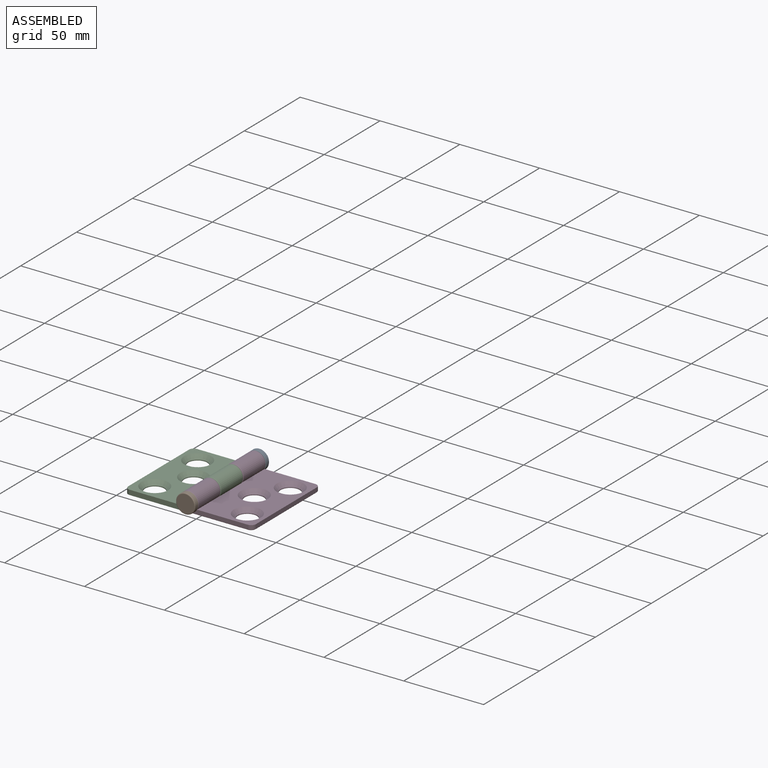
[diagram: assembled view]
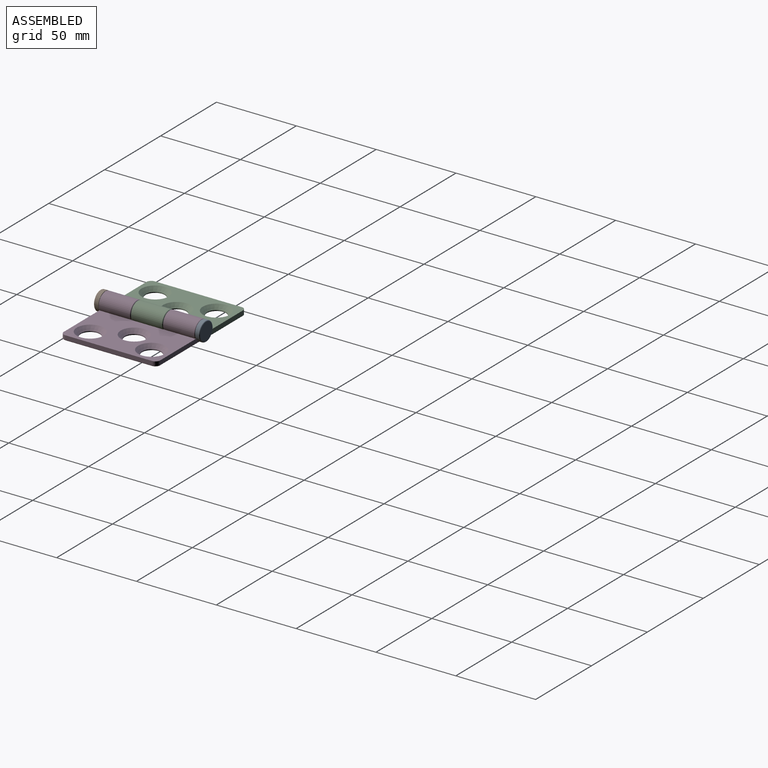
[diagram: assembled view, second angle]
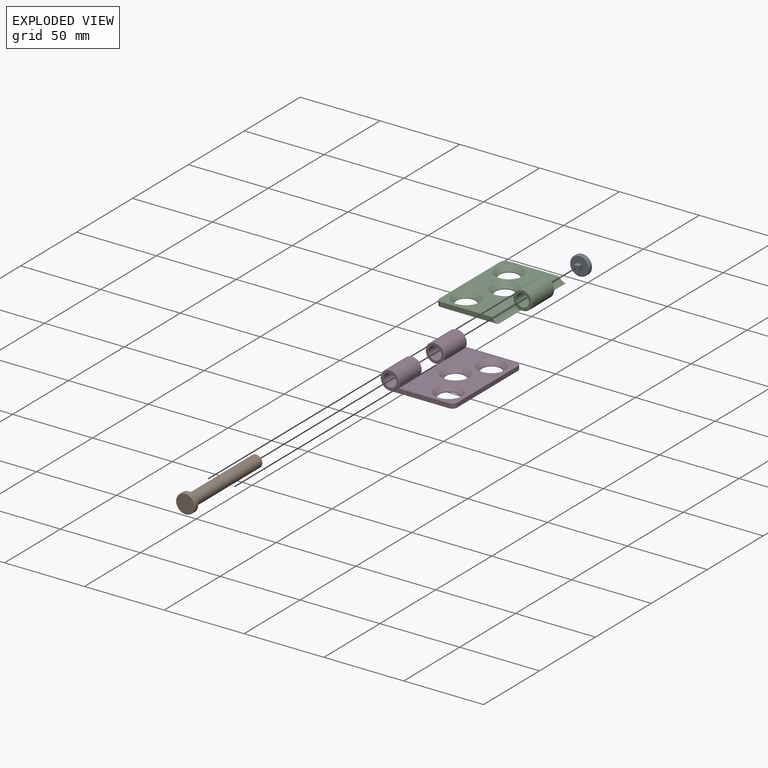
[diagram: exploded view]
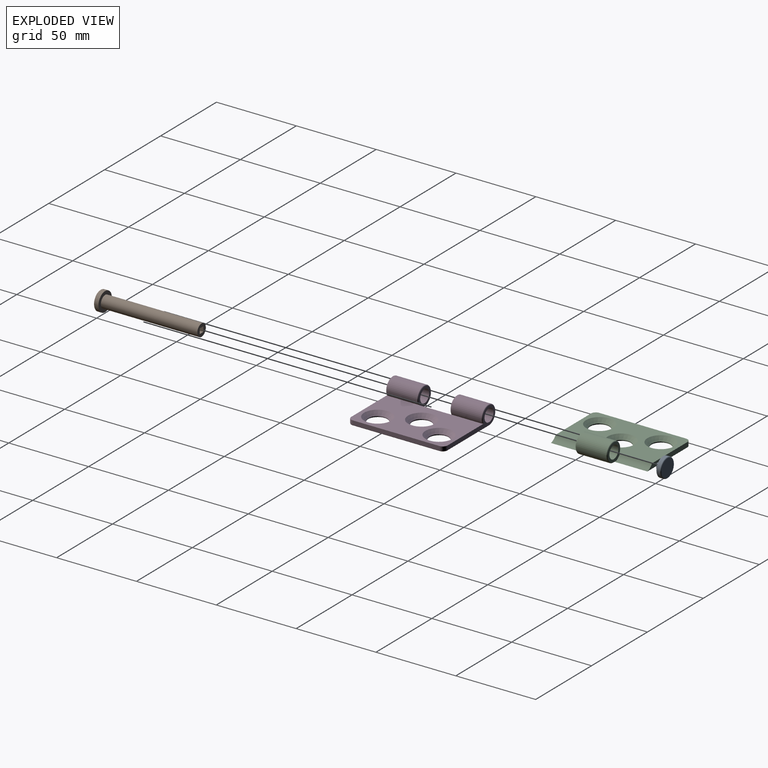
[diagram: exploded view, second angle]
ASSEMBLY  parts=4 mates=3
PART A: 10 faces, bbox 13x6x13 mm
  f0: cylinder r=6mm len=12mm, axis (0,-1,0), area 75.4mm2, adj f8,f9
  f1: plane 11x11mm, normal (0,1,0), area 95mm2, adj f9
  f2: plane 11x11mm, normal (0,-1,0), area 86.1mm2, adj f3,f4,f5,f6,f8
  f3: plane 3x2.99mm, normal (0,0,-1), area 9mm2, adj f2,f4,f6,f7
  f4: plane 3x3mm, normal (1,0,0), area 9mm2, adj f2,f3,f5,f7
  f5: plane 3x2.99mm, normal (0,0,1), area 9mm2, adj f2,f4,f6,f7
  f6: plane 3x3mm, normal (-1,0,0), area 9mm2, adj f2,f3,f5,f7
  f7: plane 3x2.99mm, normal (0,-1,0), area 9mm2, adj f3,f4,f5,f6
  f8: torus R=5.5mm, axis (0,1,0), area 28.7mm2, adj f0,f2
  f9: torus R=5.5mm, axis (0,1,0), area 28.7mm2, adj f0,f1
PART B: 11 faces, bbox 13x63.4x13 mm
  f0: plane 7.6x7.6mm, normal (0,1,0), area 35.1mm2, adj f4,f5,f6,f7,f8
  f1: cylinder r=6mm len=12mm, axis (0,1,0), area 94.2mm2, adj f3,f10
  f2: plane 11x11mm, normal (0,-1,0), area 95mm2, adj f10
  f3: plane 12x12mm, normal (0,1,0), area 67.7mm2, adj f1,f4
  f4: cylinder r=3.8mm len=60.4mm, axis (0,-1,0), area 1442.1mm2, adj f0,f3
  f5: plane 30x3.2mm, normal (0,0,1), area 96mm2, adj f0,f6,f8,f9
  f6: plane 30x3.2mm, normal (1,0,0), area 96mm2, adj f0,f5,f7,f9
  f7: plane 30x3.2mm, normal (0,0,-1), area 96mm2, adj f0,f6,f8,f9
  f8: plane 30x3.2mm, normal (-1,0,0), area 96mm2, adj f0,f5,f7,f9
  f9: plane 3.2x3.2mm, normal (0,1,0), area 10.2mm2, adj f5,f6,f7,f8
  f10: torus R=5.5mm, axis (0,-1,0), area 28.7mm2, adj f1,f2
PART C: 23 faces, bbox 46.5x60.4x13 mm
  f0: cylinder r=6mm len=19mm, axis (0,-1,0), area 596.9mm2, adj f1,f3,f19,f21
  f1: plane 60.4x35.39mm, normal (0,0,1), area 1412.8mm2, adj f0,f2,f4,f5,f9,f10,f11,f12
  f2: plane 54.4x3mm, normal (-1,0,0), area 163.2mm2, adj f1,f3,f17,f18
  f3: plane 60.4x40mm, normal (0,0,-1), area 2027.3mm2, adj f0,f2,f4,f5,f6,f7,f8,f13
  f4: plane 35.9x3mm, normal (0,1,0), area 99.4mm2, adj f1,f3,f13,f18
  f5: plane 35.9x3mm, normal (0,-1,0), area 99.4mm2, adj f1,f3,f15,f17
  f6: cylinder r=6mm len=12mm, axis (0,0,1), area 18.8mm2, adj f3,f10
  f7: cylinder r=6mm len=12mm, axis (0,0,1), area 18.8mm2, adj f3,f9
  f8: cylinder r=6mm len=12mm, axis (0,0,1), area 18.8mm2, adj f3,f11
  f9: cone r=6mm half-angle=45deg, axis (0,0,1), area 161.1mm2, adj f1,f7
  f10: cone r=6mm half-angle=45deg, axis (0,0,1), area 161.1mm2, adj f1,f6
  f11: cone r=6mm half-angle=45deg, axis (0,0,1), area 161.1mm2, adj f1,f8
  f12: plane 11x11mm, normal (0,1,0), area 47.3mm2, adj f1,f13,f16,f21,f22
  f13: cylinder r=6.1mm len=20.7mm, axis (0,-1,0), area 108.1mm2, adj f1,f3,f4,f12,f22
  f14: plane 11x11mm, normal (0,-1,0), area 47.3mm2, adj f1,f15,f16,f19,f20
  f15: cylinder r=6.1mm len=20.7mm, axis (0,-1,0), area 108.1mm2, adj f1,f3,f5,f14,f20
  f16: cylinder r=4mm len=20mm, axis (0,-1,0), area 502.7mm2, adj f12,f14
  f17: cylinder r=3mm len=3mm, axis (0,0,-1), area 14.1mm2, adj f1,f2,f3,f5
  f18: cylinder r=3mm len=3mm, axis (0,0,1), area 14.1mm2, adj f1,f2,f3,f4
  f19: torus R=5.5mm, axis (0,-1,0), area 24mm2, adj f0,f1,f14,f20
  f20: cylinder r=0.5mm len=2.64mm, axis (-1,0,0), area 1.4mm2, adj f3,f14,f15,f19
  f21: torus R=5.5mm, axis (0,-1,0), area 24mm2, adj f0,f1,f12,f22
  f22: cylinder r=0.5mm len=2.64mm, axis (1,0,0), area 1.4mm2, adj f3,f12,f13,f21
PART D: 31 faces, bbox 46.7x60.9x13 mm
  f0: plane 60.4x35.39mm, normal (0,0,1), area 1415.3mm2, adj f3,f4,f6,f7,f8,f12,f13,f14
  f1: plane 59.4x39.5mm, normal (0,0,-1), area 1981mm2, adj f3,f6,f9,f10,f11,f17,f21,f22
  f2: cylinder r=4mm len=20.1mm, axis (0,-1,0), area 505.2mm2, adj f7,f15
  f3: cylinder r=6mm len=19.1mm, axis (0,-1,0), area 600mm2, adj f0,f1,f26,f27
  f4: plane 54.4x2.5mm, normal (1,0,0), area 136mm2, adj f0,f18,f19,f23
  f5: cylinder r=4mm len=20.1mm, axis (0,-1,0), area 505.2mm2, adj f8,f16
  f6: cylinder r=6mm len=19.1mm, axis (0,-1,0), area 600mm2, adj f0,f1,f20,f29
  f7: plane 42.5x11mm, normal (0,1,0), area 129.2mm2, adj f0,f2,f19,f25,f26
  f8: plane 42.5x11mm, normal (0,-1,0), area 129.2mm2, adj f0,f5,f18,f20,f21
  f9: cylinder r=6mm len=12mm, axis (0,0,1), area 18.8mm2, adj f1,f13
  f10: cylinder r=6mm len=12mm, axis (0,0,1), area 18.8mm2, adj f1,f12
  f11: cylinder r=6mm len=12mm, axis (0,0,1), area 18.8mm2, adj f1,f14
  f12: cone r=6mm half-angle=45deg, axis (0,0,1), area 161.1mm2, adj f0,f10
  f13: cone r=6mm half-angle=45deg, axis (0,0,1), area 161.1mm2, adj f0,f9
  f14: cone r=6mm half-angle=45deg, axis (0,0,1), area 161.1mm2, adj f0,f11
  f15: plane 11x11mm, normal (0,-1,0), area 47.3mm2, adj f0,f2,f17,f27,f28
  f16: plane 11x11mm, normal (0,1,0), area 47.3mm2, adj f0,f5,f17,f29,f30
  f17: cylinder r=6.1mm len=21.2mm, axis (0,-1,0), area 108.3mm2, adj f0,f1,f15,f16,f28,f30
  f18: cylinder r=3mm len=3mm, axis (0,0,-1), area 11.8mm2, adj f0,f4,f8,f22
  f19: cylinder r=3mm len=3mm, axis (0,0,1), area 11.8mm2, adj f0,f4,f7,f24
  f20: torus R=5.5mm, axis (0,-1,0), area 24mm2, adj f0,f6,f8,f21
  f21: cylinder r=0.5mm len=37mm, axis (-1,0,0), area 29.1mm2, adj f1,f8,f20,f22
  f22: torus R=2.5mm, axis (0,0,1), area 3.5mm2, adj f1,f18,f21,f23
  f23: cylinder r=0.5mm len=54.4mm, axis (0,1,0), area 42.7mm2, adj f1,f4,f22,f24
  f24: torus R=2.5mm, axis (0,0,1), area 3.5mm2, adj f1,f19,f23,f25
  f25: cylinder r=0.5mm len=37mm, axis (1,0,0), area 29.1mm2, adj f1,f7,f24,f26
  f26: torus R=5.5mm, axis (0,-1,0), area 24mm2, adj f0,f3,f7,f25
  f27: torus R=5.5mm, axis (0,-1,0), area 24mm2, adj f0,f3,f15,f28
  f28: cylinder r=0.5mm len=2.64mm, axis (-1,0,0), area 1.4mm2, adj f1,f15,f17,f27
  f29: torus R=5.5mm, axis (0,-1,0), area 24mm2, adj f0,f6,f16,f30
  f30: cylinder r=0.5mm len=2.64mm, axis (1,0,0), area 1.4mm2, adj f1,f16,f17,f29
PLACE A t=(-5.55,-113.61,-10.53)mm
PLACE B t=(-5.66,-98.61,-10.63)mm
PLACE C t=(-5.66,-98.61,-10.63)mm
PLACE D t=(-5.66,-98.61,-10.63)mm
MATE revolute B.f1 <-> D.f2  axis (0,-1,0) through (-5.66,-98.61,-4.63)mm
MATE slider A.f2 <-> B.f0  axis (0,1,0) through (-4.06,-38.21,-3.03)mm
MATE revolute C.f0 <-> B.f1  axis (0,-1,0) through (-5.66,-68.41,-4.63)mm
